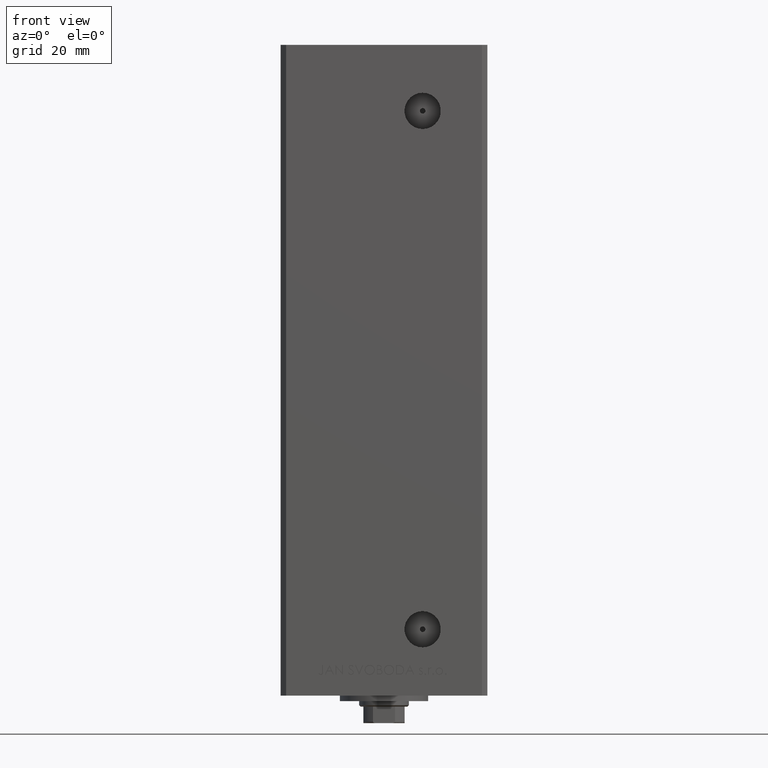
[diagram: clean part render]
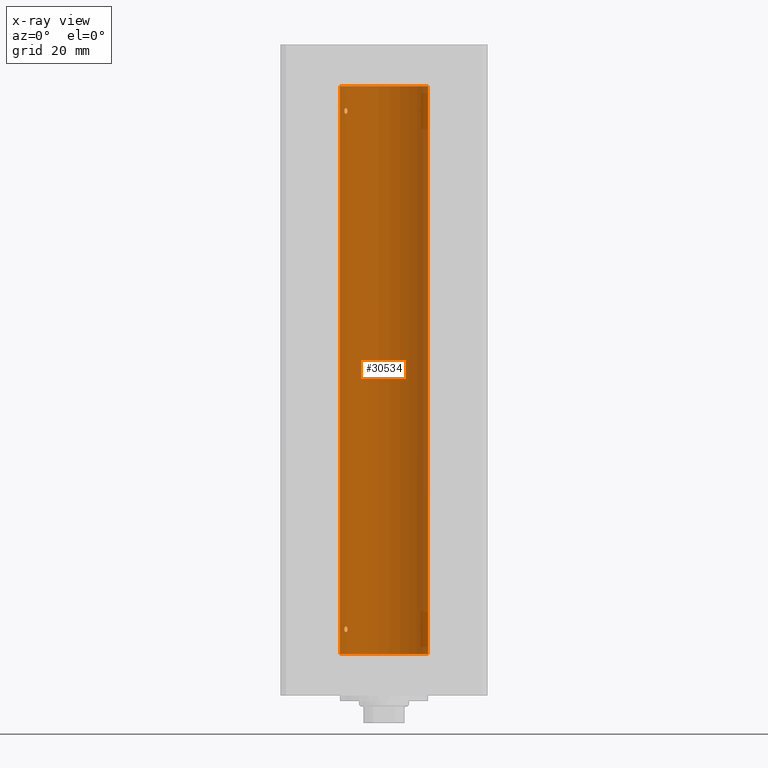
[diagram: x-ray — body ghosted, one internal face saturated and labeled with its STEP entity id]
A machine part, front view, then the same camera in x-ray: the body is ghosted and one INTERNAL B-rep face — a face not visible from any outside direction — is saturated and labeled: STEP entity #30534.
In plain terms, the highlighted cylindrical surface (partial cylindrical patch) has radius 16 mm, axis along (-0, -0, -1).
Its self-contained STEP definition (entity closure, byte-faithful):
#233 = EDGE_CURVE ( 'NONE', #13466, #21755, #45824, .T. ) ;
#428 = EDGE_LOOP ( 'NONE', ( #26092, #27483, #2983, #34671 ) ) ;
#831 = EDGE_CURVE ( 'NONE', #33514, #1822, #21262, .T. ) ;
#1147 = VERTEX_POINT ( 'NONE', #11182 ) ;
#1822 = VERTEX_POINT ( 'NONE', #48942 ) ;
#2060 = CARTESIAN_POINT ( 'NONE',  ( -14.38749456993815912, 6.999999999999998224, 196.9999999999999716 ) ) ;
#2972 = CARTESIAN_POINT ( 'NONE',  ( -13.24976519864029889, 8.969293778684560792, 9.281535226335167366 ) ) ;
#2983 = ORIENTED_EDGE ( 'NONE', *, *, #38207, .T. ) ;
#3379 = CARTESIAN_POINT ( 'NONE',  ( -14.38749456993816800, 6.999999999999984013, 9.000000000000007105 ) ) ;
#3514 = CARTESIAN_POINT ( 'NONE',  ( -14.31650799088418324, 7.144337649771909327, 197.5355226273736378 ) ) ;
#3776 = CARTESIAN_POINT ( 'NONE',  ( -13.37741691572086289, 8.778212469423007036, 197.6408828602271228 ) ) ;
#4191 = FACE_BOUND ( 'NONE', #10394, .T. ) ;
#4919 = AXIS2_PLACEMENT_3D ( 'NONE', #7340, #10611, #49049 ) ;
#4972 = B_SPLINE_CURVE_WITH_KNOTS ( 'NONE', 3,
 ( #9586, #36216, #2972, #28417, #45175, #48934, #10502, #43764, #24906, #43501, #9080, #24666, #26079, #5564, #39999, #18301 ),
 .UNSPECIFIED., .F., .F.,
 ( 4, 2, 2, 2, 2, 2, 2, 4 ),
 ( 0.003377672193071775547, 0.003799209865779873581, 0.004220747538487971615, 0.005063822883904167682, 0.005485360556612266583, 0.005906898229320366352, 0.006328435902028466120, 0.006749973574736565021 ),
 .UNSPECIFIED. ) ;
#5329 = CARTESIAN_POINT ( 'NONE',  ( -14.37250282441143945, 7.031013007322937547, 196.7168569960372793 ) ) ;
#5564 = CARTESIAN_POINT ( 'NONE',  ( -14.37227256866306746, 7.031482256185695334, 9.284457240976488279 ) ) ;
#5816 = CARTESIAN_POINT ( 'NONE',  ( -14.11621438951178398, 7.533308783217012028, 196.1065710718395110 ) ) ;
#6321 = CARTESIAN_POINT ( 'NONE',  ( -13.49759407097375075, 8.592283911330225621, 196.1840991521276578 ) ) ;
#6411 = ORIENTED_EDGE ( 'NONE', *, *, #16395, .F. ) ;
#7045 = CARTESIAN_POINT ( 'NONE',  ( -13.22875655532295802, 8.999999999999996447, 196.9999999999999716 ) ) ;
#7340 = CARTESIAN_POINT ( 'NONE',  ( 0.000000000000000000, 0.000000000000000000, 206.0000000000000000 ) ) ;
#7354 = CARTESIAN_POINT ( 'NONE',  ( -16.00000000000000000, 0.000000000000000000, 206.0000000000000000 ) ) ;
#7720 = DIRECTION ( 'NONE',  ( -1.000000000000000000, 0.000000000000000000, 0.000000000000000000 ) ) ;
#7787 = CARTESIAN_POINT ( 'NONE',  ( -14.38749456993816089, 6.999999999999999112, 197.1426254415242454 ) ) ;
#8160 = CIRCLE ( 'NONE', #4919, 16.00000000000000000 ) ;
#9080 = CARTESIAN_POINT ( 'NONE',  ( -14.17576283486775779, 7.420212263225971050, 9.825253034304363808 ) ) ;
#9586 = CARTESIAN_POINT ( 'NONE',  ( -13.22875655532296335, 8.999999999999982236, 9.000000000000007105 ) ) ;
#9597 = CARTESIAN_POINT ( 'NONE',  ( -14.27547848986623080, 7.226527013162187707, 196.3525557301815638 ) ) ;
#9941 = CARTESIAN_POINT ( 'NONE',  ( -13.23400746336173484, 8.992294519018072307, 8.857814559023026391 ) ) ;
#10193 = CARTESIAN_POINT ( 'NONE',  ( -13.98699950016873039, 7.770591669637105348, 8.018476816648488992 ) ) ;
#10394 = EDGE_LOOP ( 'NONE', ( #6411, #33947 ) ) ;
#10502 = CARTESIAN_POINT ( 'NONE',  ( -13.70792461986391864, 8.256614593260295010, 9.996621535642280065 ) ) ;
#10611 = DIRECTION ( 'NONE',  ( -0.000000000000000000, 0.000000000000000000, 1.000000000000000000 ) ) ;
#11182 = CARTESIAN_POINT ( 'NONE',  ( -16.00000000000000000, 0.000000000000000000, 206.0000000000000000 ) ) ;
#11344 = CARTESIAN_POINT ( 'NONE',  ( 0.000000000000000000, 0.000000000000000000, 0.000000000000000000 ) ) ;
#11441 = AXIS2_PLACEMENT_3D ( 'NONE', #11344, #30688, #29696 ) ;
#11535 = CARTESIAN_POINT ( 'NONE',  ( -14.37227256866306213, 7.031482256185710433, 197.2844572409764510 ) ) ;
#11795 = CARTESIAN_POINT ( 'NONE',  ( -13.32457971225032267, 8.857769707964649797, 197.5319996627465571 ) ) ;
#12665 = EDGE_CURVE ( 'NONE', #39575, #1147, #8160, .T. ) ;
#13466 = VERTEX_POINT ( 'NONE', #25004 ) ;
#13842 = CARTESIAN_POINT ( 'NONE',  ( -13.22875655532295802, 8.999999999999998224, 196.9295656223616220 ) ) ;
#14095 = CARTESIAN_POINT ( 'NONE',  ( -13.22875655532295802, 8.999999999999996447, 196.9999999999999716 ) ) ;
#14429 = CARTESIAN_POINT ( 'NONE',  ( -13.70481462797718386, 8.258098555717490186, 8.025997477291141990 ) ) ;
#14799 = EDGE_CURVE ( 'NONE', #38165, #34937, #16254, .T. ) ;
#15003 = CARTESIAN_POINT ( 'NONE',  ( 0.000000000000000000, 0.000000000000000000, 206.0000000000000000 ) ) ;
#16254 = CIRCLE ( 'NONE', #11441, 16.00000000000000000 ) ;
#16395 = EDGE_CURVE ( 'NONE', #1822, #33514, #16910, .T. ) ;
#16910 = B_SPLINE_CURVE_WITH_KNOTS ( 'NONE', 3,
 ( #2060, #44021, #5329, #36973, #9597, #17875, #5816, #21393, #32942, #32196, #36475, #20660, #6321, #21142, #21633, #36731, #48520, #48267, #13842, #14095 ),
 .UNSPECIFIED., .F., .F.,
 ( 4, 2, 2, 2, 2, 2, 2, 2, 2, 4 ),
 ( 0.000000000000000000, 0.0004222090241339814844, 0.0008444180482679629687, 0.001266627072401944453, 0.001688836096535925937, 0.002111045120669907422, 0.002533254144803888906, 0.002955463168937870391, 0.003166567681004825354, 0.003377672193071779884 ),
 .UNSPECIFIED. ) ;
#17572 = CARTESIAN_POINT ( 'NONE',  ( 16.00000000000000000, 1.959434878635765131E-15, 206.0000000000000000 ) ) ;
#17875 = CARTESIAN_POINT ( 'NONE',  ( -14.17528142432533755, 7.421143801852456257, 196.1739430735386520 ) ) ;
#18301 = CARTESIAN_POINT ( 'NONE',  ( -14.38749456993816800, 6.999999999999984013, 9.000000000000007105 ) ) ;
#18676 = VECTOR ( 'NONE', #33259, 1000.000000000000000 ) ;
#18781 = CYLINDRICAL_SURFACE ( 'NONE', #30278, 16.00000000000000000 ) ;
#20536 = CARTESIAN_POINT ( 'NONE',  ( -16.00000000000000000, 0.000000000000000000, 0.000000000000000000 ) ) ;
#20660 = CARTESIAN_POINT ( 'NONE',  ( -13.56386909142669772, 8.487613976483638467, 196.1182242979961075 ) ) ;
#21142 = CARTESIAN_POINT ( 'NONE',  ( -13.37674940693422698, 8.779234808442867077, 196.3602441571267718 ) ) ;
#21262 = B_SPLINE_CURVE_WITH_KNOTS ( 'NONE', 3,
 ( #7045, #37936, #42212, #11795, #3776, #45976, #26376, #45232, #34181, #29886, #49239, #41706, #3514, #11535, #7787, #23107 ),
 .UNSPECIFIED., .F., .F.,
 ( 4, 2, 2, 2, 2, 2, 2, 4 ),
 ( 0.003377672193071779884, 0.003799209865779893530, 0.004220747538488007176, 0.005063822883904185029, 0.005485360556612275257, 0.005906898229320365484, 0.006328435902028455712, 0.006749973574736545072 ),
 .UNSPECIFIED. ) ;
#21393 = CARTESIAN_POINT ( 'NONE',  ( -13.98699950016872506, 7.770591669637118670, 196.0184768166484730 ) ) ;
#21495 = CARTESIAN_POINT ( 'NONE',  ( -13.32426099938365915, 8.858246960865836073, 8.468874877532975631 ) ) ;
#21578 = EDGE_CURVE ( 'NONE', #39575, #38165, #25363, .T. ) ;
#21633 = CARTESIAN_POINT ( 'NONE',  ( -13.32426099938365383, 8.858246960865843178, 196.4688748775330112 ) ) ;
#21725 = CARTESIAN_POINT ( 'NONE',  ( -13.91838063522421542, 7.892966471903923420, 7.998148313308686141 ) ) ;
#21755 = VERTEX_POINT ( 'NONE', #31461 ) ;
#21810 = DIRECTION ( 'NONE',  ( -0.000000000000000000, -0.000000000000000000, -1.000000000000000000 ) ) ;
#23107 = CARTESIAN_POINT ( 'NONE',  ( -14.38749456993815912, 6.999999999999998224, 196.9999999999999716 ) ) ;
#24666 = CARTESIAN_POINT ( 'NONE',  ( -14.27521483392929902, 7.227035590538620546, 9.647859870688199280 ) ) ;
#24906 = CARTESIAN_POINT ( 'NONE',  ( -13.98878315975730224, 7.767347947480332415, 9.980546143261287639 ) ) ;
#25004 = CARTESIAN_POINT ( 'NONE',  ( -14.38749456993816800, 6.999999999999984013, 9.000000000000007105 ) ) ;
#25276 = CARTESIAN_POINT ( 'NONE',  ( -13.22875655532296513, 8.999999999999982236, 8.929565622361650412 ) ) ;
#25363 = LINE ( 'NONE', #17572, #37218 ) ;
#25757 = CARTESIAN_POINT ( 'NONE',  ( -13.49759407097375608, 8.592283911330213186, 8.184099152127679133 ) ) ;
#26002 = CARTESIAN_POINT ( 'NONE',  ( -13.26838749541401263, 8.941532915076029653, 8.656217793921380022 ) ) ;
#26079 = CARTESIAN_POINT ( 'NONE',  ( -14.31650799088419213, 7.144337649771898668, 9.535522627373698157 ) ) ;
#26092 = ORIENTED_EDGE ( 'NONE', *, *, #21578, .F. ) ;
#26209 = CARTESIAN_POINT ( 'NONE',  ( 16.00000000000000000, 1.959434878635765131E-15, 0.000000000000000000 ) ) ;
#26376 = CARTESIAN_POINT ( 'NONE',  ( -13.70792461986390798, 8.256614593260307444, 197.9966215356422765 ) ) ;
#27061 = DIRECTION ( 'NONE',  ( -0.000000000000000000, -0.000000000000000000, -1.000000000000000000 ) ) ;
#27483 = ORIENTED_EDGE ( 'NONE', *, *, #12665, .T. ) ;
#28417 = CARTESIAN_POINT ( 'NONE',  ( -13.32457971225033866, 8.857769707964637362, 9.531999662746560631 ) ) ;
#28482 = CARTESIAN_POINT ( 'NONE',  ( -13.22875655532295802, 8.999999999999996447, 196.9999999999999716 ) ) ;
#29015 = CARTESIAN_POINT ( 'NONE',  ( -13.25390108270226364, 8.962947079338375644, 8.721435762358465738 ) ) ;
#29696 = DIRECTION ( 'NONE',  ( 1.000000000000000000, 0.000000000000000000, 0.000000000000000000 ) ) ;
#29752 = CARTESIAN_POINT ( 'NONE',  ( -13.56386909142670660, 8.487613976483618927, 8.118224297996086136 ) ) ;
#29811 = EDGE_LOOP ( 'NONE', ( #49126, #41785 ) ) ;
#29886 = CARTESIAN_POINT ( 'NONE',  ( -14.11618354197461400, 7.533333301880476895, 197.8932076519334373 ) ) ;
#30006 = CARTESIAN_POINT ( 'NONE',  ( -13.37674940693423054, 8.779234808442856419, 8.360244157126787812 ) ) ;
#30278 = AXIS2_PLACEMENT_3D ( 'NONE', #15003, #27061, #7720 ) ;
#30330 = FACE_OUTER_BOUND ( 'NONE', #428, .T. ) ;
#30534 = ADVANCED_FACE ( 'NONE', ( #30330, #38125, #4191 ), #18781, .F. ) ;
#30688 = DIRECTION ( 'NONE',  ( -0.000000000000000000, 0.000000000000000000, 1.000000000000000000 ) ) ;
#31461 = CARTESIAN_POINT ( 'NONE',  ( -13.22875655532296335, 8.999999999999982236, 9.000000000000007105 ) ) ;
#31532 = EDGE_CURVE ( 'NONE', #21755, #13466, #4972, .T. ) ;
#32196 = CARTESIAN_POINT ( 'NONE',  ( -13.77582987033441064, 8.139210687602716376, 196.0021105458418447 ) ) ;
#32942 = CARTESIAN_POINT ( 'NONE',  ( -13.91838063522421187, 7.892966471903947401, 195.9981483133086897 ) ) ;
#33041 = CARTESIAN_POINT ( 'NONE',  ( -14.11621438951178575, 7.533308783216997817, 8.106571071839523412 ) ) ;
#33259 = DIRECTION ( 'NONE',  ( -0.000000000000000000, -0.000000000000000000, -1.000000000000000000 ) ) ;
#33301 = CARTESIAN_POINT ( 'NONE',  ( -14.27547848986623258, 7.226527013162171720, 8.352555730181538962 ) ) ;
#33514 = VERTEX_POINT ( 'NONE', #28482 ) ;
#33947 = ORIENTED_EDGE ( 'NONE', *, *, #831, .F. ) ;
#34181 = CARTESIAN_POINT ( 'NONE',  ( -13.98878315975728981, 7.767347947480344850, 197.9805461432612503 ) ) ;
#34671 = ORIENTED_EDGE ( 'NONE', *, *, #14799, .F. ) ;
#34937 = VERTEX_POINT ( 'NONE', #20536 ) ;
#36216 = CARTESIAN_POINT ( 'NONE',  ( -13.22875655532296335, 8.999999999999978684, 9.140644760917750133 ) ) ;
#36475 = CARTESIAN_POINT ( 'NONE',  ( -13.70481462797717320, 8.258098555717507949, 196.0259974772910994 ) ) ;
#36731 = CARTESIAN_POINT ( 'NONE',  ( -13.26838749541400730, 8.941532915076043864, 196.6562177939213427 ) ) ;
#36973 = CARTESIAN_POINT ( 'NONE',  ( -14.31660136508398828, 7.144151923086062617, 196.4646217954444012 ) ) ;
#37218 = VECTOR ( 'NONE', #21810, 1000.000000000000000 ) ;
#37936 = CARTESIAN_POINT ( 'NONE',  ( -13.22875655532296157, 8.999999999999998224, 197.1406447609177235 ) ) ;
#38125 = FACE_BOUND ( 'NONE', #29811, .T. ) ;
#38165 = VERTEX_POINT ( 'NONE', #26209 ) ;
#38207 = EDGE_CURVE ( 'NONE', #1147, #34937, #48327, .T. ) ;
#38958 = CARTESIAN_POINT ( 'NONE',  ( 16.00000000000000000, 1.959434878635765131E-15, 206.0000000000000000 ) ) ;
#39575 = VERTEX_POINT ( 'NONE', #38958 ) ;
#39999 = CARTESIAN_POINT ( 'NONE',  ( -14.38749456993816978, 6.999999999999985789, 9.142625441524216967 ) ) ;
#40605 = CARTESIAN_POINT ( 'NONE',  ( -13.22875655532296335, 8.999999999999982236, 9.000000000000007105 ) ) ;
#40849 = CARTESIAN_POINT ( 'NONE',  ( -14.37250282441144655, 7.031013007322923336, 8.716856996037272154 ) ) ;
#41706 = CARTESIAN_POINT ( 'NONE',  ( -14.27521483392929369, 7.227035590538639198, 197.6478598706882508 ) ) ;
#41785 = ORIENTED_EDGE ( 'NONE', *, *, #31532, .F. ) ;
#42212 = CARTESIAN_POINT ( 'NONE',  ( -13.24976519864029179, 8.969293778684573226, 197.2815352263351372 ) ) ;
#43501 = CARTESIAN_POINT ( 'NONE',  ( -14.11618354197462644, 7.533333301880464461, 9.893207651933423108 ) ) ;
#43764 = CARTESIAN_POINT ( 'NONE',  ( -13.91892506969883669, 7.891973478508838902, 10.00155212263245375 ) ) ;
#44021 = CARTESIAN_POINT ( 'NONE',  ( -14.38749456993815556, 6.999999999999997335, 196.8571474096353313 ) ) ;
#44358 = CARTESIAN_POINT ( 'NONE',  ( -14.31660136508400072, 7.144151923086045741, 8.464621795444484675 ) ) ;
#45097 = CARTESIAN_POINT ( 'NONE',  ( -14.38749456993816445, 6.999999999999982236, 8.857147409635420132 ) ) ;
#45175 = CARTESIAN_POINT ( 'NONE',  ( -13.37741691572086467, 8.778212469422998154, 9.640882860227108608 ) ) ;
#45232 = CARTESIAN_POINT ( 'NONE',  ( -13.91892506969882426, 7.891973478508846895, 198.0015521226324324 ) ) ;
#45824 = B_SPLINE_CURVE_WITH_KNOTS ( 'NONE', 3,
 ( #3379, #45097, #40849, #44358, #33301, #48123, #33041, #10193, #21725, #48863, #14429, #29752, #25757, #30006, #21495, #26002, #29015, #9941, #25276, #40605 ),
 .UNSPECIFIED., .F., .F.,
 ( 4, 2, 2, 2, 2, 2, 2, 2, 2, 4 ),
 ( 0.000000000000000000, 0.0004222090241339719434, 0.0008444180482679438868, 0.001266627072401915830, 0.001688836096535887774, 0.002111045120669859717, 0.002533254144803831660, 0.002955463168937803604, 0.003166567681004789359, 0.003377672193071775547 ),
 .UNSPECIFIED. ) ;
#45976 = CARTESIAN_POINT ( 'NONE',  ( -13.55800260393082901, 8.498809056167511145, 197.9036434462101965 ) ) ;
#48123 = CARTESIAN_POINT ( 'NONE',  ( -14.17528142432534288, 7.421143801852442934, 8.173943073538671555 ) ) ;
#48267 = CARTESIAN_POINT ( 'NONE',  ( -13.23400746336172418, 8.992294519018086518, 196.8578145590230122 ) ) ;
#48327 = LINE ( 'NONE', #7354, #18676 ) ;
#48520 = CARTESIAN_POINT ( 'NONE',  ( -13.25390108270225298, 8.962947079338393408, 196.7214357623584817 ) ) ;
#48863 = CARTESIAN_POINT ( 'NONE',  ( -13.77582987033441952, 8.139210687602698613, 8.002110545841825129 ) ) ;
#48934 = CARTESIAN_POINT ( 'NONE',  ( -13.55800260393082901, 8.498809056167502263, 9.903643446210180556 ) ) ;
#48942 = CARTESIAN_POINT ( 'NONE',  ( -14.38749456993815912, 6.999999999999998224, 196.9999999999999716 ) ) ;
#49049 = DIRECTION ( 'NONE',  ( 1.000000000000000000, 0.000000000000000000, 0.000000000000000000 ) ) ;
#49126 = ORIENTED_EDGE ( 'NONE', *, *, #233, .F. ) ;
#49239 = CARTESIAN_POINT ( 'NONE',  ( -14.17576283486774713, 7.420212263225987925, 197.8252530343043532 ) ) ;